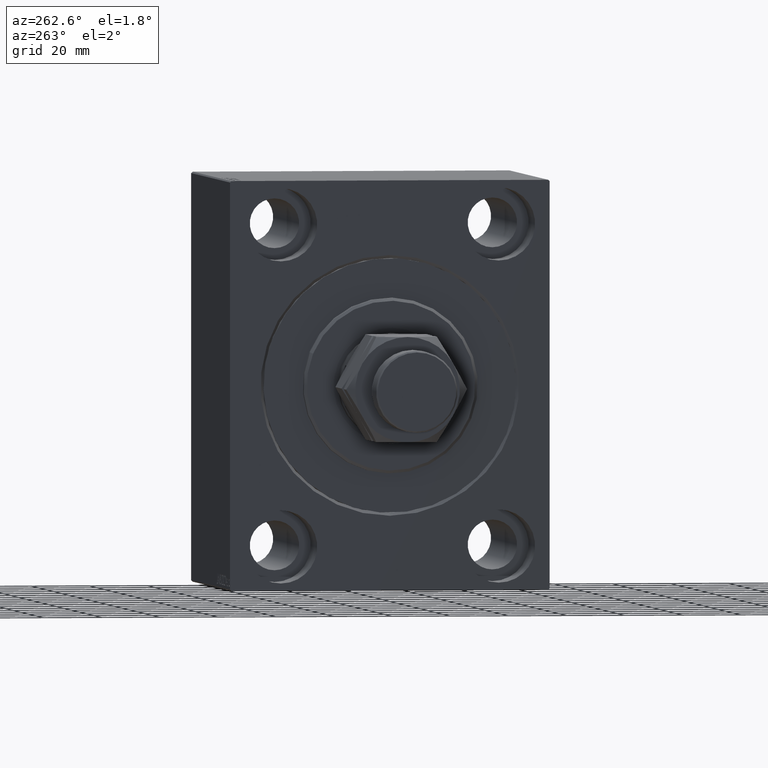
[diagram: clean part render]
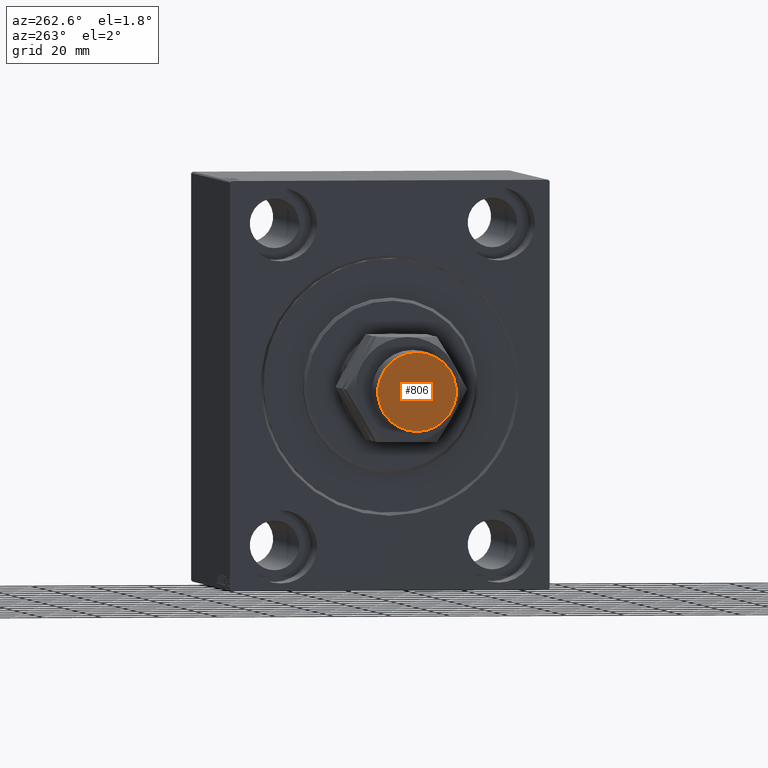
[diagram: same view with one face highlighted and labeled with its STEP entity id]
A machine part, auxiliary view. The second image highlights one B-rep face of the part: STEP entity #806.
In plain terms, the highlighted planar face has unit normal (-1, 0, 0).
Its self-contained STEP definition (entity closure, byte-faithful):
#806 = ADVANCED_FACE ( 'NONE', ( #11954 ), #25756, .T. ) ;
#1938 = EDGE_CURVE ( 'NONE', #21240, #18542, #24556, .T. ) ;
#7208 = EDGE_CURVE ( 'NONE', #18542, #21240, #15920, .T. ) ;
#8049 = EDGE_LOOP ( 'NONE', ( #19707, #26383 ) ) ;
#11954 = FACE_OUTER_BOUND ( 'NONE', #8049, .T. ) ;
#12634 = CARTESIAN_POINT ( 'NONE',  ( -13.50000000000001954, 0.000000000000000000, 59.00000000000000000 ) ) ;
#14248 = AXIS2_PLACEMENT_3D ( 'NONE', #15405, #25986, #38740 ) ;
#15405 = CARTESIAN_POINT ( 'NONE',  ( 0.000000000000000000, 0.000000000000000000, 59.00000000000000000 ) ) ;
#15920 = CIRCLE ( 'NONE', #31358, 13.50000000000001954 ) ;
#16697 = CARTESIAN_POINT ( 'NONE',  ( 0.000000000000000000, 0.000000000000000000, 59.00000000000000000 ) ) ;
#17197 = DIRECTION ( 'NONE',  ( 0.000000000000000000, 0.000000000000000000, 1.000000000000000000 ) ) ;
#18542 = VERTEX_POINT ( 'NONE', #39448 ) ;
#19707 = ORIENTED_EDGE ( 'NONE', *, *, #1938, .T. ) ;
#21240 = VERTEX_POINT ( 'NONE', #12634 ) ;
#23580 = DIRECTION ( 'NONE',  ( 1.000000000000000000, 0.000000000000000000, 0.000000000000000000 ) ) ;
#23831 = AXIS2_PLACEMENT_3D ( 'NONE', #16697, #37177, #23580 ) ;
#24556 = CIRCLE ( 'NONE', #23831, 13.50000000000001954 ) ;
#25756 = PLANE ( 'NONE',  #14248 ) ;
#25986 = DIRECTION ( 'NONE',  ( 0.000000000000000000, 0.000000000000000000, 1.000000000000000000 ) ) ;
#26383 = ORIENTED_EDGE ( 'NONE', *, *, #7208, .T. ) ;
#31358 = AXIS2_PLACEMENT_3D ( 'NONE', #44810, #17197, #45034 ) ;
#37177 = DIRECTION ( 'NONE',  ( 0.000000000000000000, 0.000000000000000000, 1.000000000000000000 ) ) ;
#38740 = DIRECTION ( 'NONE',  ( 1.000000000000000000, 0.000000000000000000, -0.000000000000000000 ) ) ;
#39448 = CARTESIAN_POINT ( 'NONE',  ( 13.50000000000001954, 1.683889348827612034E-15, 59.00000000000000000 ) ) ;
#44810 = CARTESIAN_POINT ( 'NONE',  ( 0.000000000000000000, 0.000000000000000000, 59.00000000000000000 ) ) ;
#45034 = DIRECTION ( 'NONE',  ( 1.000000000000000000, 0.000000000000000000, 0.000000000000000000 ) ) ;